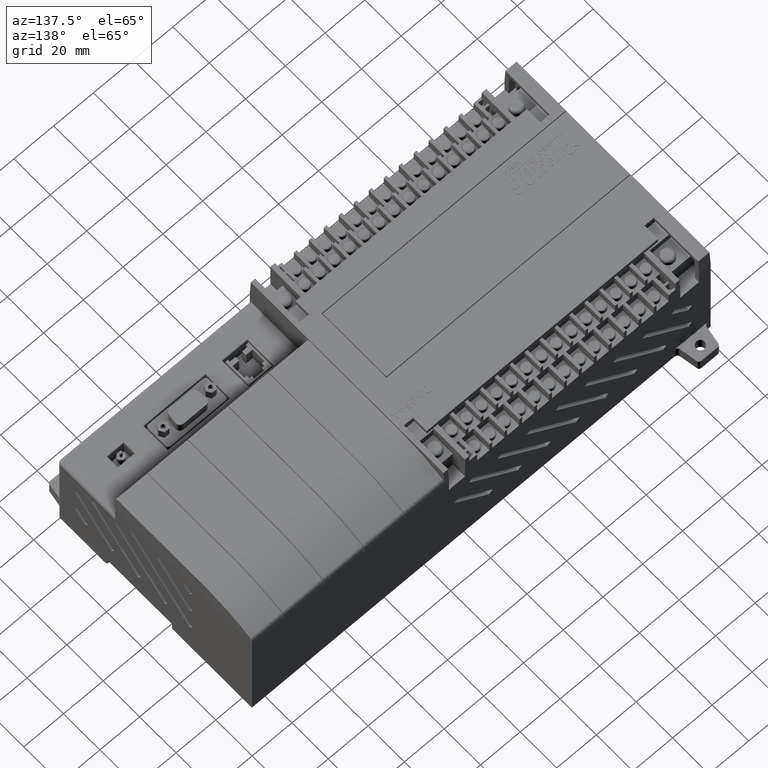
[diagram: clean part render]
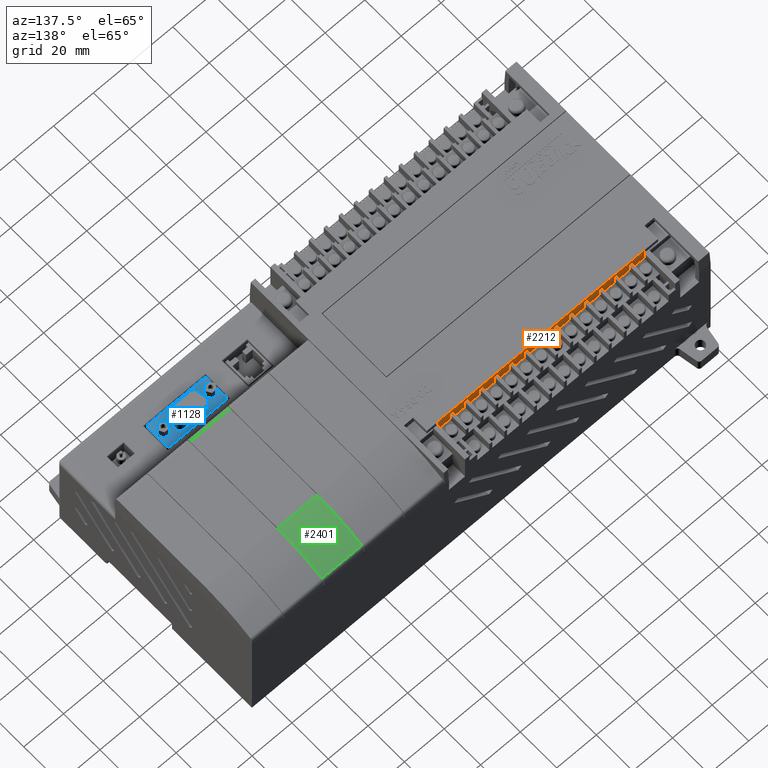
[diagram: same view with three faces highlighted in distinct colors, each labeled with its STEP entity id]
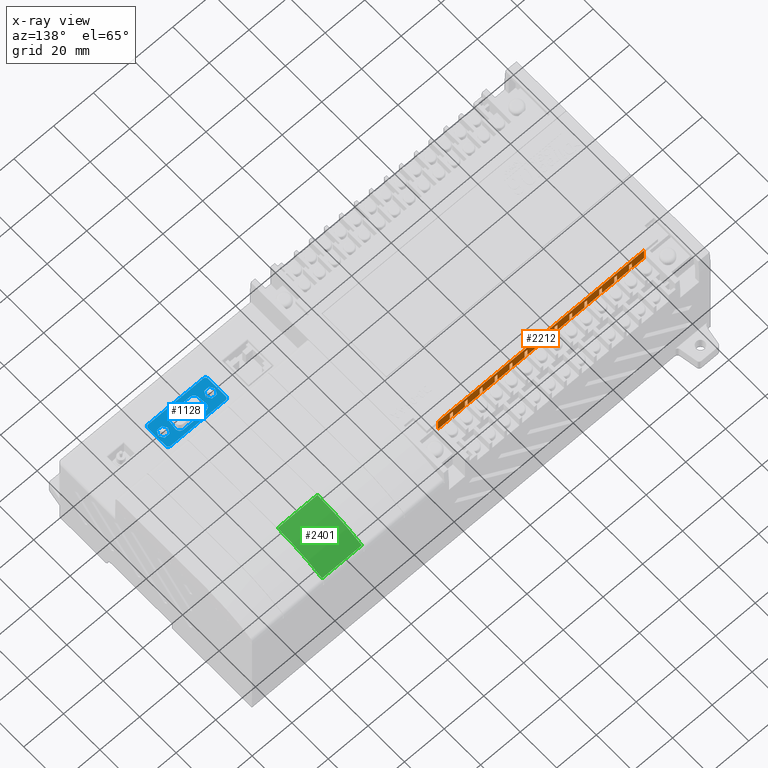
[diagram: x-ray of the same camera — body ghosted, the three highlighted faces saturated]
A machine part, auxiliary view with three faces highlighted in distinct colors.
The next image is the same camera in x-ray (body ghosted, the three faces saturated) — at least one of them is partly hidden behind the body in this view.
Their STEP definitions:

[orange] entity #2212 — the highlighted planar face has unit normal (0, -1, 0).
#411 = VERTEX_POINT ( 'NONE', #8822 ) ;
#415 = EDGE_CURVE ( 'NONE', #4213, #411, #8816, .T. ) ;
#1467 = EDGE_CURVE ( 'NONE', #2183, #62572, #11500, .T. ) ;
#1558 = VERTEX_POINT ( 'NONE', #11776 ) ;
#1749 = EDGE_CURVE ( 'NONE', #1558, #2715, #12292, .T. ) ;
#2152 = ORIENTED_EDGE ( 'NONE', *, *, #2154, .T. ) ;
#2154 = EDGE_CURVE ( 'NONE', #2289, #63170, #13418, .T. ) ;
#2157 = ORIENTED_EDGE ( 'NONE', *, *, #2841, .F. ) ;
#2158 = ORIENTED_EDGE ( 'NONE', *, *, #2161, .F. ) ;
#2161 = EDGE_CURVE ( 'NONE', #2241, #2948, #13513, .T. ) ;
#2162 = ORIENTED_EDGE ( 'NONE', *, *, #2165, .F. ) ;
#2165 = EDGE_CURVE ( 'NONE', #2168, #2631, #13506, .T. ) ;
#2168 = VERTEX_POINT ( 'NONE', #13489 ) ;
#2171 = ORIENTED_EDGE ( 'NONE', *, *, #2172, .T. ) ;
#2172 = EDGE_CURVE ( 'NONE', #2168, #2173, #13484, .T. ) ;
#2173 = VERTEX_POINT ( 'NONE', #13476 ) ;
#2175 = ORIENTED_EDGE ( 'NONE', *, *, #2176, .T. ) ;
#2176 = EDGE_CURVE ( 'NONE', #2173, #2207, #13474, .T. ) ;
#2178 = ORIENTED_EDGE ( 'NONE', *, *, #2218, .F. ) ;
#2180 = ORIENTED_EDGE ( 'NONE', *, *, #2182, .F. ) ;
#2182 = EDGE_CURVE ( 'NONE', #2183, #2194, #13586, .T. ) ;
#2183 = VERTEX_POINT ( 'NONE', #13581 ) ;
#2186 = ORIENTED_EDGE ( 'NONE', *, *, #1467, .T. ) ;
#2194 = VERTEX_POINT ( 'NONE', #13704 ) ;
#2207 = VERTEX_POINT ( 'NONE', #13689 ) ;
#2212 = ADVANCED_FACE ( 'NONE', ( #13678 ), #13739, .F. ) ;
#2214 = EDGE_LOOP ( 'NONE', ( #2162, #2171, #2175, #2178, #2180, #2186, #69274, #2274, #2276, #2285, #2152, #2157, #2158, #2247, #2253, #2264, #2266, #2269, #2351, #2357, #2220, #2225, #2230, #2235, #2236, #2328, #2333, #2339, #2340, #2344, #2303, #2307, #2308, #2312, #2319, #2321, #2376, #2386, #2397, #2405, #2413, #2295, #2487, #2360, #2362, #2366, #2370, #2373, #2459, #2466, #2476, #2479, #2480, #2482, #2484, #2561 ) ) ;
#2218 = EDGE_CURVE ( 'NONE', #2194, #2207, #13726, .T. ) ;
#2220 = ORIENTED_EDGE ( 'NONE', *, *, #2221, .F. ) ;
#2221 = EDGE_CURVE ( 'NONE', #2223, #62824, #13720, .T. ) ;
#2223 = VERTEX_POINT ( 'NONE', #13715 ) ;
#2225 = ORIENTED_EDGE ( 'NONE', *, *, #2226, .T. ) ;
#2226 = EDGE_CURVE ( 'NONE', #2223, #2228, #13713, .T. ) ;
#2228 = VERTEX_POINT ( 'NONE', #13709 ) ;
#2230 = ORIENTED_EDGE ( 'NONE', *, *, #2233, .T. ) ;
#2233 = EDGE_CURVE ( 'NONE', #2228, #62813, #13822, .T. ) ;
#2235 = ORIENTED_EDGE ( 'NONE', *, *, #62834, .F. ) ;
#2236 = ORIENTED_EDGE ( 'NONE', *, *, #2324, .F. ) ;
#2237 = VERTEX_POINT ( 'NONE', #13817 ) ;
#2241 = VERTEX_POINT ( 'NONE', #13806 ) ;
#2247 = ORIENTED_EDGE ( 'NONE', *, *, #2248, .T. ) ;
#2248 = EDGE_CURVE ( 'NONE', #2241, #2251, #13801, .T. ) ;
#2251 = VERTEX_POINT ( 'NONE', #13794 ) ;
#2253 = ORIENTED_EDGE ( 'NONE', *, *, #2258, .T. ) ;
#2258 = EDGE_CURVE ( 'NONE', #2251, #62960, #13792, .T. ) ;
#2264 = ORIENTED_EDGE ( 'NONE', *, *, #62914, .F. ) ;
#2266 = ORIENTED_EDGE ( 'NONE', *, *, #2267, .F. ) ;
#2267 = EDGE_CURVE ( 'NONE', #2268, #62968, #13780, .T. ) ;
#2268 = VERTEX_POINT ( 'NONE', #13773 ) ;
#2269 = ORIENTED_EDGE ( 'NONE', *, *, #2270, .T. ) ;
#2270 = EDGE_CURVE ( 'NONE', #2268, #2271, #13766, .T. ) ;
#2271 = VERTEX_POINT ( 'NONE', #13757 ) ;
#2272 = EDGE_CURVE ( 'NONE', #62572, #2715, #13879, .T. ) ;
#2274 = ORIENTED_EDGE ( 'NONE', *, *, #1749, .F. ) ;
#2276 = ORIENTED_EDGE ( 'NONE', *, *, #2278, .F. ) ;
#2278 = EDGE_CURVE ( 'NONE', #2280, #1558, #13935, .T. ) ;
#2280 = VERTEX_POINT ( 'NONE', #13929 ) ;
#2285 = ORIENTED_EDGE ( 'NONE', *, *, #2287, .T. ) ;
#2287 = EDGE_CURVE ( 'NONE', #2280, #2289, #13920, .T. ) ;
#2289 = VERTEX_POINT ( 'NONE', #13915 ) ;
#2292 = VERTEX_POINT ( 'NONE', #13914 ) ;
#2295 = ORIENTED_EDGE ( 'NONE', *, *, #2485, .T. ) ;
#2299 = VERTEX_POINT ( 'NONE', #13912 ) ;
#2303 = ORIENTED_EDGE ( 'NONE', *, *, #2306, .T. ) ;
#2306 = EDGE_CURVE ( 'NONE', #2299, #61712, #13908, .T. ) ;
#2307 = ORIENTED_EDGE ( 'NONE', *, *, #61725, .F. ) ;
#2308 = ORIENTED_EDGE ( 'NONE', *, *, #2309, .F. ) ;
#2309 = EDGE_CURVE ( 'NONE', #2310, #61723, #13901, .T. ) ;
#2310 = VERTEX_POINT ( 'NONE', #13895 ) ;
#2312 = ORIENTED_EDGE ( 'NONE', *, *, #2314, .T. ) ;
#2314 = EDGE_CURVE ( 'NONE', #2310, #2317, #13890, .T. ) ;
#2317 = VERTEX_POINT ( 'NONE', #13987 ) ;
#2319 = ORIENTED_EDGE ( 'NONE', *, *, #2320, .T. ) ;
#2320 = EDGE_CURVE ( 'NONE', #2317, #61688, #13974, .T. ) ;
#2321 = ORIENTED_EDGE ( 'NONE', *, *, #61705, .F. ) ;
#2322 = VERTEX_POINT ( 'NONE', #13968 ) ;
#2324 = EDGE_CURVE ( 'NONE', #2237, #62812, #13963, .T. ) ;
#2328 = ORIENTED_EDGE ( 'NONE', *, *, #2329, .T. ) ;
#2329 = EDGE_CURVE ( 'NONE', #2237, #2330, #13951, .T. ) ;
#2330 = VERTEX_POINT ( 'NONE', #13947 ) ;
#2333 = ORIENTED_EDGE ( 'NONE', *, *, #2334, .T. ) ;
#2334 = EDGE_CURVE ( 'NONE', #2330, #63041, #14060, .T. ) ;
#2339 = ORIENTED_EDGE ( 'NONE', *, *, #63102, .F. ) ;
#2340 = ORIENTED_EDGE ( 'NONE', *, *, #2342, .F. ) ;
#2342 = EDGE_CURVE ( 'NONE', #2343, #63098, #14044, .T. ) ;
#2343 = VERTEX_POINT ( 'NONE', #14040 ) ;
#2344 = ORIENTED_EDGE ( 'NONE', *, *, #2346, .T. ) ;
#2346 = EDGE_CURVE ( 'NONE', #2343, #2299, #14036, .T. ) ;
#2351 = ORIENTED_EDGE ( 'NONE', *, *, #2353, .T. ) ;
#2353 = EDGE_CURVE ( 'NONE', #2271, #62836, #14012, .T. ) ;
#2357 = ORIENTED_EDGE ( 'NONE', *, *, #62815, .F. ) ;
#2360 = ORIENTED_EDGE ( 'NONE', *, *, #61623, .F. ) ;
#2362 = ORIENTED_EDGE ( 'NONE', *, *, #2363, .F. ) ;
#2363 = EDGE_CURVE ( 'NONE', #2364, #61620, #14081, .T. ) ;
#2364 = VERTEX_POINT ( 'NONE', #14072 ) ;
#2366 = ORIENTED_EDGE ( 'NONE', *, *, #2367, .T. ) ;
#2367 = EDGE_CURVE ( 'NONE', #2364, #2368, #14187, .T. ) ;
#2368 = VERTEX_POINT ( 'NONE', #14178 ) ;
#2370 = ORIENTED_EDGE ( 'NONE', *, *, #2372, .T. ) ;
#2372 = EDGE_CURVE ( 'NONE', #2368, #60848, #14167, .T. ) ;
#2373 = ORIENTED_EDGE ( 'NONE', *, *, #60993, .F. ) ;
#2376 = ORIENTED_EDGE ( 'NONE', *, *, #2378, .F. ) ;
#2378 = EDGE_CURVE ( 'NONE', #2322, #61783, #14234, .T. ) ;
#2386 = ORIENTED_EDGE ( 'NONE', *, *, #2390, .T. ) ;
#2390 = EDGE_CURVE ( 'NONE', #2322, #2395, #14212, .T. ) ;
#2395 = VERTEX_POINT ( 'NONE', #14302 ) ;
#2397 = ORIENTED_EDGE ( 'NONE', *, *, #2402, .T. ) ;
#2402 = EDGE_CURVE ( 'NONE', #2395, #61612, #14369, .T. ) ;
#2405 = ORIENTED_EDGE ( 'NONE', *, *, #61689, .F. ) ;
#2413 = ORIENTED_EDGE ( 'NONE', *, *, #2419, .F. ) ;
#2419 = EDGE_CURVE ( 'NONE', #2292, #61610, #14342, .T. ) ;
#2459 = ORIENTED_EDGE ( 'NONE', *, *, #2461, .F. ) ;
#2461 = EDGE_CURVE ( 'NONE', #2463, #61023, #14463, .T. ) ;
#2463 = VERTEX_POINT ( 'NONE', #14456 ) ;
#2466 = ORIENTED_EDGE ( 'NONE', *, *, #2470, .T. ) ;
#2470 = EDGE_CURVE ( 'NONE', #2463, #2473, #14555, .T. ) ;
#2473 = VERTEX_POINT ( 'NONE', #14551 ) ;
#2476 = ORIENTED_EDGE ( 'NONE', *, *, #2477, .T. ) ;
#2477 = EDGE_CURVE ( 'NONE', #2473, #61546, #14536, .T. ) ;
#2479 = ORIENTED_EDGE ( 'NONE', *, *, #61553, .F. ) ;
#2480 = ORIENTED_EDGE ( 'NONE', *, *, #4307, .F. ) ;
#2482 = ORIENTED_EDGE ( 'NONE', *, *, #415, .T. ) ;
#2484 = ORIENTED_EDGE ( 'NONE', *, *, #2560, .T. ) ;
#2485 = EDGE_CURVE ( 'NONE', #2292, #2486, #14525, .T. ) ;
#2486 = VERTEX_POINT ( 'NONE', #14520 ) ;
#2487 = ORIENTED_EDGE ( 'NONE', *, *, #2490, .T. ) ;
#2490 = EDGE_CURVE ( 'NONE', #2486, #61589, #14517, .T. ) ;
#2560 = EDGE_CURVE ( 'NONE', #411, #3025, #14640, .T. ) ;
#2561 = ORIENTED_EDGE ( 'NONE', *, *, #3232, .F. ) ;
#2631 = VERTEX_POINT ( 'NONE', #14931 ) ;
#2715 = VERTEX_POINT ( 'NONE', #15100 ) ;
#2841 = EDGE_CURVE ( 'NONE', #2948, #63170, #15474, .T. ) ;
#2948 = VERTEX_POINT ( 'NONE', #15828 ) ;
#3025 = VERTEX_POINT ( 'NONE', #16028 ) ;
#3232 = EDGE_CURVE ( 'NONE', #2631, #3025, #16492, .T. ) ;
#4213 = VERTEX_POINT ( 'NONE', #19314 ) ;
#4307 = EDGE_CURVE ( 'NONE', #4213, #61539, #19496, .T. ) ;
#8811 = DIRECTION ( 'NONE',  ( 1.000000000000000000, 0.0000000000000000000, 3.491483361109382100E-015 ) ) ;
#8813 = VECTOR ( 'NONE', #8811, 39.37007874015748100 ) ;
#8815 = CARTESIAN_POINT ( 'NONE',  ( -3.262450984251971800, 3.521567633333243700, 5.822449999999983900 ) ) ;
#8816 = LINE ( 'NONE', #8815, #8813 ) ;
#8822 = CARTESIAN_POINT ( 'NONE',  ( 1.517649015748027800, 3.521567633333243300, 5.822450000000000800 ) ) ;
#11496 = DIRECTION ( 'NONE',  ( -1.000000000000000000, 0.0000000000000000000, -3.491483361109382100E-015 ) ) ;
#11498 = VECTOR ( 'NONE', #11496, 39.37007874015748100 ) ;
#11499 = CARTESIAN_POINT ( 'NONE',  ( 0.9256490157480276000, 3.521567633333242900, 5.734449999999998900 ) ) ;
#11500 = LINE ( 'NONE', #11499, #11498 ) ;
#11776 = CARTESIAN_POINT ( 'NONE',  ( 0.6846490157480292800, 3.521567633333242900, 5.562449999999997500 ) ) ;
#12289 = DIRECTION ( 'NONE',  ( 1.000000000000000000, -0.0000000000000000000, 3.491483361109382100E-015 ) ) ;
#12290 = VECTOR ( 'NONE', #12289, 39.37007874015748100 ) ;
#12291 = CARTESIAN_POINT ( 'NONE',  ( -2.571350984251971300, 3.521567633333243300, 5.562449999999986800 ) ) ;
#12292 = LINE ( 'NONE', #12291, #12290 ) ;
#12939 = DIRECTION ( 'NONE',  ( 3.491483361109382900E-015, -0.0000000000000000000, -1.000000000000000000 ) ) ;
#13415 = VECTOR ( 'NONE', #12939, 39.37007874015748100 ) ;
#13417 = CARTESIAN_POINT ( 'NONE',  ( 0.6296490157480267900, 3.521567633333242900, 6.081337950208706800 ) ) ;
#13418 = LINE ( 'NONE', #13417, #13415 ) ;
#13474 = LINE ( 'NONE', #13590, #13589 ) ;
#13476 = CARTESIAN_POINT ( 'NONE',  ( 1.221649015748027500, 3.521567633333242900, 5.734449999999999800 ) ) ;
#13479 = DIRECTION ( 'NONE',  ( -1.000000000000000000, 0.0000000000000000000, -3.491483361109382100E-015 ) ) ;
#13480 = VECTOR ( 'NONE', #13479, 39.37007874015748100 ) ;
#13482 = CARTESIAN_POINT ( 'NONE',  ( 1.221649015748027500, 3.521567633333242900, 5.734449999999999800 ) ) ;
#13484 = LINE ( 'NONE', #13482, #13480 ) ;
#13489 = CARTESIAN_POINT ( 'NONE',  ( 1.276649015748027900, 3.521567633333242900, 5.734449999999999800 ) ) ;
#13502 = DIRECTION ( 'NONE',  ( 3.491483361109382900E-015, -0.0000000000000000000, -1.000000000000000000 ) ) ;
#13503 = VECTOR ( 'NONE', #13502, 39.37007874015748100 ) ;
#13504 = CARTESIAN_POINT ( 'NONE',  ( 1.276649015748026800, 3.521567633333242900, 6.081337950208708600 ) ) ;
#13506 = LINE ( 'NONE', #13504, #13503 ) ;
#13510 = DIRECTION ( 'NONE',  ( 3.491483361109382900E-015, -0.0000000000000000000, -1.000000000000000000 ) ) ;
#13511 = VECTOR ( 'NONE', #13510, 39.37007874015748100 ) ;
#13512 = CARTESIAN_POINT ( 'NONE',  ( 0.3886490157480267900, 3.521567633333242900, 6.081337950208705900 ) ) ;
#13513 = LINE ( 'NONE', #13512, #13511 ) ;
#13581 = CARTESIAN_POINT ( 'NONE',  ( 0.9806490157480279900, 3.521567633333242900, 5.734449999999998900 ) ) ;
#13583 = DIRECTION ( 'NONE',  ( 3.491483361109382900E-015, -0.0000000000000000000, -1.000000000000000000 ) ) ;
#13584 = VECTOR ( 'NONE', #13583, 39.37007874015748100 ) ;
#13585 = CARTESIAN_POINT ( 'NONE',  ( 0.9806490157480268800, 3.521567633333242900, 6.081337950208707700 ) ) ;
#13586 = LINE ( 'NONE', #13585, #13584 ) ;
#13588 = DIRECTION ( 'NONE',  ( 3.491483361109382900E-015, -0.0000000000000000000, -1.000000000000000000 ) ) ;
#13589 = VECTOR ( 'NONE', #13588, 39.37007874015748100 ) ;
#13590 = CARTESIAN_POINT ( 'NONE',  ( 1.221649015748026400, 3.521567633333242900, 6.081337950208708600 ) ) ;
#13678 = FACE_OUTER_BOUND ( 'NONE', #2214, .T. ) ;
#13689 = CARTESIAN_POINT ( 'NONE',  ( 1.221649015748028000, 3.521567633333242900, 5.562449999999999200 ) ) ;
#13704 = CARTESIAN_POINT ( 'NONE',  ( 0.9806490157480285400, 3.521567633333242900, 5.562449999999998300 ) ) ;
#13709 = CARTESIAN_POINT ( 'NONE',  ( -0.2583509842519720600, 3.521567633333242900, 5.734449999999994500 ) ) ;
#13710 = DIRECTION ( 'NONE',  ( -1.000000000000000000, 0.0000000000000000000, -3.491483361109382100E-015 ) ) ;
#13711 = VECTOR ( 'NONE', #13710, 39.37007874015748100 ) ;
#13712 = CARTESIAN_POINT ( 'NONE',  ( -0.2583509842519720600, 3.521567633333242900, 5.734449999999994500 ) ) ;
#13713 = LINE ( 'NONE', #13712, #13711 ) ;
#13715 = CARTESIAN_POINT ( 'NONE',  ( -0.2033509842519717100, 3.521567633333242900, 5.734449999999994500 ) ) ;
#13717 = DIRECTION ( 'NONE',  ( 3.491483361109382900E-015, -0.0000000000000000000, -1.000000000000000000 ) ) ;
#13718 = VECTOR ( 'NONE', #13717, 39.37007874015748100 ) ;
#13719 = CARTESIAN_POINT ( 'NONE',  ( -0.2033509842519727900, 3.521567633333242900, 6.081337950208703300 ) ) ;
#13720 = LINE ( 'NONE', #13719, #13718 ) ;
#13722 = DIRECTION ( 'NONE',  ( 1.000000000000000000, -0.0000000000000000000, 3.491483361109382100E-015 ) ) ;
#13724 = VECTOR ( 'NONE', #13722, 39.37007874015748100 ) ;
#13725 = CARTESIAN_POINT ( 'NONE',  ( -2.571350984251971300, 3.521567633333243300, 5.562449999999986800 ) ) ;
#13726 = LINE ( 'NONE', #13725, #13724 ) ;
#13729 = DIRECTION ( 'NONE',  ( 1.000000000000000000, 0.0000000000000000000, 3.491483361109382100E-015 ) ) ;
#13730 = DIRECTION ( 'NONE',  ( 0.0000000000000000000, -1.000000000000000000, 0.0000000000000000000 ) ) ;
#13732 = CARTESIAN_POINT ( 'NONE',  ( -2.571350984251973500, 3.521567633333243300, 5.999335771198232700 ) ) ;
#13733 = AXIS2_PLACEMENT_3D ( 'NONE', #13732, #13730, #13729 ) ;
#13739 = PLANE ( 'NONE',  #13733 ) ;
#13757 = CARTESIAN_POINT ( 'NONE',  ( 0.03764901574802826500, 3.521567633333242900, 5.734449999999995400 ) ) ;
#13760 = DIRECTION ( 'NONE',  ( -1.000000000000000000, 0.0000000000000000000, -3.491483361109382100E-015 ) ) ;
#13761 = VECTOR ( 'NONE', #13760, 39.37007874015748100 ) ;
#13764 = CARTESIAN_POINT ( 'NONE',  ( 0.03764901574802826500, 3.521567633333242900, 5.734449999999995400 ) ) ;
#13766 = LINE ( 'NONE', #13764, #13761 ) ;
#13773 = CARTESIAN_POINT ( 'NONE',  ( 0.09264901574802754400, 3.521567633333242900, 5.734449999999995400 ) ) ;
#13776 = DIRECTION ( 'NONE',  ( 3.491483361109382900E-015, -0.0000000000000000000, -1.000000000000000000 ) ) ;
#13778 = VECTOR ( 'NONE', #13776, 39.37007874015748100 ) ;
#13779 = CARTESIAN_POINT ( 'NONE',  ( 0.09264901574802644800, 3.521567633333242900, 6.081337950208704200 ) ) ;
#13780 = LINE ( 'NONE', #13779, #13778 ) ;
#13786 = DIRECTION ( 'NONE',  ( 3.491483361109382900E-015, -0.0000000000000000000, -1.000000000000000000 ) ) ;
#13788 = VECTOR ( 'NONE', #13786, 39.37007874015748100 ) ;
#13791 = CARTESIAN_POINT ( 'NONE',  ( 0.3336490157480264100, 3.521567633333242900, 6.081337950208705900 ) ) ;
#13792 = LINE ( 'NONE', #13791, #13788 ) ;
#13794 = CARTESIAN_POINT ( 'NONE',  ( 0.3336490157480275200, 3.521567633333242900, 5.734449999999996300 ) ) ;
#13796 = DIRECTION ( 'NONE',  ( -1.000000000000000000, 0.0000000000000000000, -3.491483361109382100E-015 ) ) ;
#13797 = VECTOR ( 'NONE', #13796, 39.37007874015748100 ) ;
#13799 = CARTESIAN_POINT ( 'NONE',  ( 0.3336490157480275200, 3.521567633333242900, 5.734449999999996300 ) ) ;
#13801 = LINE ( 'NONE', #13799, #13797 ) ;
#13806 = CARTESIAN_POINT ( 'NONE',  ( 0.3886490157480279000, 3.521567633333242900, 5.734449999999996300 ) ) ;
#13817 = CARTESIAN_POINT ( 'NONE',  ( -0.4993509842519720500, 3.521567633333242900, 5.734449999999994500 ) ) ;
#13818 = DIRECTION ( 'NONE',  ( 3.491483361109382900E-015, -0.0000000000000000000, -1.000000000000000000 ) ) ;
#13820 = VECTOR ( 'NONE', #13818, 39.37007874015748100 ) ;
#13821 = CARTESIAN_POINT ( 'NONE',  ( -0.2583509842519731700, 3.521567633333242900, 6.081337950208703300 ) ) ;
#13822 = LINE ( 'NONE', #13821, #13820 ) ;
#13873 = DIRECTION ( 'NONE',  ( 3.491483361109382900E-015, -0.0000000000000000000, -1.000000000000000000 ) ) ;
#13875 = VECTOR ( 'NONE', #13873, 39.37007874015748100 ) ;
#13877 = CARTESIAN_POINT ( 'NONE',  ( 0.9256490157480266000, 3.521567633333242900, 6.081337950208707700 ) ) ;
#13879 = LINE ( 'NONE', #13877, #13875 ) ;
#13885 = DIRECTION ( 'NONE',  ( -1.000000000000000000, 0.0000000000000000000, -3.491483361109382100E-015 ) ) ;
#13887 = VECTOR ( 'NONE', #13885, 39.37007874015748100 ) ;
#13888 = CARTESIAN_POINT ( 'NONE',  ( -1.146350984251971900, 3.521567633333242900, 5.734449999999990900 ) ) ;
#13890 = LINE ( 'NONE', #13888, #13887 ) ;
#13895 = CARTESIAN_POINT ( 'NONE',  ( -1.091350984251971500, 3.521567633333242900, 5.734449999999991800 ) ) ;
#13896 = DIRECTION ( 'NONE',  ( 3.491483361109382900E-015, -0.0000000000000000000, -1.000000000000000000 ) ) ;
#13897 = VECTOR ( 'NONE', #13896, 39.37007874015748100 ) ;
#13899 = CARTESIAN_POINT ( 'NONE',  ( -1.091350984251972600, 3.521567633333242900, 6.081337950208699700 ) ) ;
#13901 = LINE ( 'NONE', #13899, #13897 ) ;
#13905 = DIRECTION ( 'NONE',  ( 3.491483361109382900E-015, -0.0000000000000000000, -1.000000000000000000 ) ) ;
#13906 = VECTOR ( 'NONE', #13905, 39.37007874015748100 ) ;
#13907 = CARTESIAN_POINT ( 'NONE',  ( -0.8503509842519727500, 3.521567633333242900, 6.081337950208701500 ) ) ;
#13908 = LINE ( 'NONE', #13907, #13906 ) ;
#13912 = CARTESIAN_POINT ( 'NONE',  ( -0.8503509842519716400, 3.521567633333242900, 5.734449999999991800 ) ) ;
#13914 = CARTESIAN_POINT ( 'NONE',  ( -1.683350984251972300, 3.521567633333242900, 5.734449999999990100 ) ) ;
#13915 = CARTESIAN_POINT ( 'NONE',  ( 0.6296490157480279000, 3.521567633333242900, 5.734449999999998000 ) ) ;
#13916 = DIRECTION ( 'NONE',  ( -1.000000000000000000, 0.0000000000000000000, -3.491483361109382100E-015 ) ) ;
#13917 = VECTOR ( 'NONE', #13916, 39.37007874015748100 ) ;
#13919 = CARTESIAN_POINT ( 'NONE',  ( 0.6296490157480279000, 3.521567633333242900, 5.734449999999998000 ) ) ;
#13920 = LINE ( 'NONE', #13919, #13917 ) ;
#13929 = CARTESIAN_POINT ( 'NONE',  ( 0.6846490157480281700, 3.521567633333242900, 5.734449999999998000 ) ) ;
#13930 = DIRECTION ( 'NONE',  ( 3.491483361109382900E-015, -0.0000000000000000000, -1.000000000000000000 ) ) ;
#13932 = VECTOR ( 'NONE', #13930, 39.37007874015748100 ) ;
#13933 = CARTESIAN_POINT ( 'NONE',  ( 0.6846490157480271700, 3.521567633333242900, 6.081337950208706800 ) ) ;
#13935 = LINE ( 'NONE', #13933, #13932 ) ;
#13947 = CARTESIAN_POINT ( 'NONE',  ( -0.5543509842519723800, 3.521567633333242900, 5.734449999999993600 ) ) ;
#13948 = DIRECTION ( 'NONE',  ( -1.000000000000000000, 0.0000000000000000000, -3.491483361109382100E-015 ) ) ;
#13949 = VECTOR ( 'NONE', #13948, 39.37007874015748100 ) ;
#13950 = CARTESIAN_POINT ( 'NONE',  ( -0.5543509842519723800, 3.521567633333242900, 5.734449999999993600 ) ) ;
#13951 = LINE ( 'NONE', #13950, #13949 ) ;
#13959 = DIRECTION ( 'NONE',  ( 3.491483361109382900E-015, -0.0000000000000000000, -1.000000000000000000 ) ) ;
#13960 = VECTOR ( 'NONE', #13959, 39.37007874015748100 ) ;
#13962 = CARTESIAN_POINT ( 'NONE',  ( -0.4993509842519731600, 3.521567633333242900, 6.081337950208702400 ) ) ;
#13963 = LINE ( 'NONE', #13962, #13960 ) ;
#13968 = CARTESIAN_POINT ( 'NONE',  ( -1.387350984251972000, 3.521567633333242900, 5.734449999999990100 ) ) ;
#13970 = DIRECTION ( 'NONE',  ( 3.491483361109382900E-015, -0.0000000000000000000, -1.000000000000000000 ) ) ;
#13972 = VECTOR ( 'NONE', #13970, 39.37007874015748100 ) ;
#13973 = CARTESIAN_POINT ( 'NONE',  ( -1.146350984251973000, 3.521567633333242900, 6.081337950208699700 ) ) ;
#13974 = LINE ( 'NONE', #13973, #13972 ) ;
#13987 = CARTESIAN_POINT ( 'NONE',  ( -1.146350984251971900, 3.521567633333242900, 5.734449999999990900 ) ) ;
#14006 = DIRECTION ( 'NONE',  ( 3.491483361109382900E-015, -0.0000000000000000000, -1.000000000000000000 ) ) ;
#14008 = VECTOR ( 'NONE', #14006, 39.37007874015748100 ) ;
#14010 = CARTESIAN_POINT ( 'NONE',  ( 0.03764901574802716900, 3.521567633333242900, 6.081337950208704200 ) ) ;
#14012 = LINE ( 'NONE', #14010, #14008 ) ;
#14031 = DIRECTION ( 'NONE',  ( -1.000000000000000000, 0.0000000000000000000, -3.491483361109382100E-015 ) ) ;
#14033 = VECTOR ( 'NONE', #14031, 39.37007874015748100 ) ;
#14035 = CARTESIAN_POINT ( 'NONE',  ( -0.8503509842519716400, 3.521567633333242900, 5.734449999999991800 ) ) ;
#14036 = LINE ( 'NONE', #14035, #14033 ) ;
#14040 = CARTESIAN_POINT ( 'NONE',  ( -0.7953509842519723700, 3.521567633333242900, 5.734449999999991800 ) ) ;
#14041 = DIRECTION ( 'NONE',  ( 3.491483361109382900E-015, -0.0000000000000000000, -1.000000000000000000 ) ) ;
#14042 = VECTOR ( 'NONE', #14041, 39.37007874015748100 ) ;
#14043 = CARTESIAN_POINT ( 'NONE',  ( -0.7953509842519734800, 3.521567633333242900, 6.081337950208702400 ) ) ;
#14044 = LINE ( 'NONE', #14043, #14042 ) ;
#14054 = DIRECTION ( 'NONE',  ( 3.491483361109382900E-015, -0.0000000000000000000, -1.000000000000000000 ) ) ;
#14056 = VECTOR ( 'NONE', #14054, 39.37007874015748100 ) ;
#14058 = CARTESIAN_POINT ( 'NONE',  ( -0.5543509842519734900, 3.521567633333242900, 6.081337950208702400 ) ) ;
#14060 = LINE ( 'NONE', #14058, #14056 ) ;
#14072 = CARTESIAN_POINT ( 'NONE',  ( -1.979350984251971600, 3.521567633333242900, 5.734449999999987400 ) ) ;
#14075 = DIRECTION ( 'NONE',  ( 3.491483361109382900E-015, -0.0000000000000000000, -1.000000000000000000 ) ) ;
#14077 = VECTOR ( 'NONE', #14075, 39.37007874015748100 ) ;
#14079 = CARTESIAN_POINT ( 'NONE',  ( -1.979350984251972800, 3.521567633333242900, 6.081337950208697900 ) ) ;
#14081 = LINE ( 'NONE', #14079, #14077 ) ;
#14161 = DIRECTION ( 'NONE',  ( 3.491483361109382900E-015, -0.0000000000000000000, -1.000000000000000000 ) ) ;
#14163 = VECTOR ( 'NONE', #14161, 39.37007874015748100 ) ;
#14165 = CARTESIAN_POINT ( 'NONE',  ( -2.034350984251973100, 3.521567633333242900, 6.081337950208697900 ) ) ;
#14167 = LINE ( 'NONE', #14165, #14163 ) ;
#14178 = CARTESIAN_POINT ( 'NONE',  ( -2.034350984251971800, 3.521567633333242900, 5.734449999999987400 ) ) ;
#14181 = DIRECTION ( 'NONE',  ( -1.000000000000000000, 0.0000000000000000000, -3.491483361109382100E-015 ) ) ;
#14183 = VECTOR ( 'NONE', #14181, 39.37007874015748100 ) ;
#14185 = CARTESIAN_POINT ( 'NONE',  ( -2.034350984251971800, 3.521567633333242900, 5.734449999999987400 ) ) ;
#14187 = LINE ( 'NONE', #14185, #14183 ) ;
#14207 = DIRECTION ( 'NONE',  ( -1.000000000000000000, 0.0000000000000000000, -3.491483361109382100E-015 ) ) ;
#14208 = VECTOR ( 'NONE', #14207, 39.37007874015748100 ) ;
#14210 = CARTESIAN_POINT ( 'NONE',  ( -1.442350984251972400, 3.521567633333242900, 5.734449999999990100 ) ) ;
#14212 = LINE ( 'NONE', #14210, #14208 ) ;
#14230 = DIRECTION ( 'NONE',  ( 3.491483361109382900E-015, -0.0000000000000000000, -1.000000000000000000 ) ) ;
#14232 = VECTOR ( 'NONE', #14230, 39.37007874015748100 ) ;
#14233 = CARTESIAN_POINT ( 'NONE',  ( -1.387350984251973100, 3.521567633333242900, 6.081337950208699700 ) ) ;
#14234 = LINE ( 'NONE', #14233, #14232 ) ;
#14302 = CARTESIAN_POINT ( 'NONE',  ( -1.442350984251972400, 3.521567633333242900, 5.734449999999990100 ) ) ;
#14339 = DIRECTION ( 'NONE',  ( 3.491483361109382900E-015, -0.0000000000000000000, -1.000000000000000000 ) ) ;
#14340 = VECTOR ( 'NONE', #14339, 39.37007874015748100 ) ;
#14341 = CARTESIAN_POINT ( 'NONE',  ( -1.683350984251973400, 3.521567633333242900, 6.081337950208697900 ) ) ;
#14342 = LINE ( 'NONE', #14341, #14340 ) ;
#14365 = DIRECTION ( 'NONE',  ( 3.491483361109382900E-015, -0.0000000000000000000, -1.000000000000000000 ) ) ;
#14367 = VECTOR ( 'NONE', #14365, 39.37007874015748100 ) ;
#14368 = CARTESIAN_POINT ( 'NONE',  ( -1.442350984251973500, 3.521567633333242900, 6.081337950208699700 ) ) ;
#14369 = LINE ( 'NONE', #14368, #14367 ) ;
#14456 = CARTESIAN_POINT ( 'NONE',  ( -2.275350984251971900, 3.521567633333242900, 5.734449999999987400 ) ) ;
#14458 = DIRECTION ( 'NONE',  ( 3.491483361109382900E-015, -0.0000000000000000000, -1.000000000000000000 ) ) ;
#14460 = VECTOR ( 'NONE', #14458, 39.37007874015748100 ) ;
#14462 = CARTESIAN_POINT ( 'NONE',  ( -2.275350984251972800, 3.521567633333242900, 6.081337950208695300 ) ) ;
#14463 = LINE ( 'NONE', #14462, #14460 ) ;
#14513 = DIRECTION ( 'NONE',  ( 3.491483361109382900E-015, -0.0000000000000000000, -1.000000000000000000 ) ) ;
#14514 = VECTOR ( 'NONE', #14513, 39.37007874015748100 ) ;
#14516 = CARTESIAN_POINT ( 'NONE',  ( -1.738350984251973800, 3.521567633333242900, 6.081337950208697900 ) ) ;
#14517 = LINE ( 'NONE', #14516, #14514 ) ;
#14520 = CARTESIAN_POINT ( 'NONE',  ( -1.738350984251972700, 3.521567633333242900, 5.734449999999990100 ) ) ;
#14521 = DIRECTION ( 'NONE',  ( -1.000000000000000000, 0.0000000000000000000, -3.491483361109382100E-015 ) ) ;
#14523 = VECTOR ( 'NONE', #14521, 39.37007874015748100 ) ;
#14524 = CARTESIAN_POINT ( 'NONE',  ( -1.738350984251972700, 3.521567633333242900, 5.734449999999990100 ) ) ;
#14525 = LINE ( 'NONE', #14524, #14523 ) ;
#14532 = DIRECTION ( 'NONE',  ( 3.491483361109382900E-015, -0.0000000000000000000, -1.000000000000000000 ) ) ;
#14533 = VECTOR ( 'NONE', #14532, 39.37007874015748100 ) ;
#14535 = CARTESIAN_POINT ( 'NONE',  ( -2.330350984251973400, 3.521567633333242900, 6.081337950208695300 ) ) ;
#14536 = LINE ( 'NONE', #14535, #14533 ) ;
#14551 = CARTESIAN_POINT ( 'NONE',  ( -2.330350984251972100, 3.521567633333243300, 5.734449999999987400 ) ) ;
#14552 = DIRECTION ( 'NONE',  ( -1.000000000000000000, 0.0000000000000000000, -3.491483361109382100E-015 ) ) ;
#14553 = VECTOR ( 'NONE', #14552, 39.37007874015748100 ) ;
#14554 = CARTESIAN_POINT ( 'NONE',  ( -2.330350984251972100, 3.521567633333242900, 5.734449999999987400 ) ) ;
#14555 = LINE ( 'NONE', #14554, #14553 ) ;
#14636 = DIRECTION ( 'NONE',  ( 3.491483361109382100E-015, 0.0000000000000000000, -1.000000000000000000 ) ) ;
#14637 = VECTOR ( 'NONE', #14636, 39.37007874015748100 ) ;
#14639 = CARTESIAN_POINT ( 'NONE',  ( 1.517649015748027100, 3.521567633333243300, 5.999335771198248700 ) ) ;
#14640 = LINE ( 'NONE', #14639, #14637 ) ;
#14931 = CARTESIAN_POINT ( 'NONE',  ( 1.276649015748028400, 3.521567633333242900, 5.562449999999999200 ) ) ;
#15100 = CARTESIAN_POINT ( 'NONE',  ( 0.9256490157480281600, 3.521567633333242900, 5.562449999999998300 ) ) ;
#15469 = DIRECTION ( 'NONE',  ( 1.000000000000000000, -0.0000000000000000000, 3.491483361109382100E-015 ) ) ;
#15470 = VECTOR ( 'NONE', #15469, 39.37007874015748100 ) ;
#15471 = CARTESIAN_POINT ( 'NONE',  ( -2.571350984251971300, 3.521567633333243300, 5.562449999999986800 ) ) ;
#15474 = LINE ( 'NONE', #15471, #15470 ) ;
#15828 = CARTESIAN_POINT ( 'NONE',  ( 0.3886490157480289600, 3.521567633333242900, 5.562449999999996600 ) ) ;
#16028 = CARTESIAN_POINT ( 'NONE',  ( 1.517649015748028200, 3.521567633333243300, 5.562450000000001000 ) ) ;
#16488 = DIRECTION ( 'NONE',  ( 1.000000000000000000, -0.0000000000000000000, 3.491483361109382100E-015 ) ) ;
#16489 = VECTOR ( 'NONE', #16488, 39.37007874015748100 ) ;
#16490 = CARTESIAN_POINT ( 'NONE',  ( -2.571350984251971300, 3.521567633333243300, 5.562449999999986800 ) ) ;
#16492 = LINE ( 'NONE', #16490, #16489 ) ;
#19314 = CARTESIAN_POINT ( 'NONE',  ( -2.571350984251972200, 3.521567633333243300, 5.822449999999986600 ) ) ;
#19490 = DIRECTION ( 'NONE',  ( 3.491483361109382100E-015, 0.0000000000000000000, -1.000000000000000000 ) ) ;
#19491 = VECTOR ( 'NONE', #19490, 39.37007874015748100 ) ;
#19494 = CARTESIAN_POINT ( 'NONE',  ( -2.571350984251973500, 3.521567633333243300, 5.999335771198232700 ) ) ;
#19496 = LINE ( 'NONE', #19494, #19491 ) ;
#45696 = CARTESIAN_POINT ( 'NONE',  ( -2.034350984251970900, 3.521567633333242900, 5.562449999999987700 ) ) ;
#46323 = DIRECTION ( 'NONE',  ( 1.000000000000000000, -0.0000000000000000000, 3.491483361109382100E-015 ) ) ;
#46324 = VECTOR ( 'NONE', #46323, 39.37007874015748100 ) ;
#46325 = CARTESIAN_POINT ( 'NONE',  ( -2.571350984251971300, 3.521567633333243300, 5.562449999999986800 ) ) ;
#46326 = LINE ( 'NONE', #46325, #46324 ) ;
#46404 = CARTESIAN_POINT ( 'NONE',  ( -2.275350984251971000, 3.521567633333243300, 5.562449999999987700 ) ) ;
#48403 = CARTESIAN_POINT ( 'NONE',  ( -2.330350984251971200, 3.521567633333243300, 5.562449999999987700 ) ) ;
#48422 = CARTESIAN_POINT ( 'NONE',  ( -2.571350984251971300, 3.521567633333243300, 5.562449999999986800 ) ) ;
#48484 = DIRECTION ( 'NONE',  ( 1.000000000000000000, -0.0000000000000000000, 3.491483361109382100E-015 ) ) ;
#48485 = VECTOR ( 'NONE', #48484, 39.37007874015748100 ) ;
#48486 = CARTESIAN_POINT ( 'NONE',  ( -2.571350984251971300, 3.521567633333243300, 5.562449999999986800 ) ) ;
#48487 = LINE ( 'NONE', #48486, #48485 ) ;
#48533 = CARTESIAN_POINT ( 'NONE',  ( -1.738350984251971500, 3.521567633333242900, 5.562449999999988600 ) ) ;
#48569 = CARTESIAN_POINT ( 'NONE',  ( -1.683350984251971200, 3.521567633333242900, 5.562449999999989500 ) ) ;
#48586 = CARTESIAN_POINT ( 'NONE',  ( -1.442350984251971300, 3.521567633333242900, 5.562449999999989500 ) ) ;
#48624 = DIRECTION ( 'NONE',  ( 1.000000000000000000, -0.0000000000000000000, 3.491483361109382100E-015 ) ) ;
#48625 = VECTOR ( 'NONE', #48624, 39.37007874015748100 ) ;
#48626 = CARTESIAN_POINT ( 'NONE',  ( -2.571350984251971300, 3.521567633333243300, 5.562449999999986800 ) ) ;
#48627 = LINE ( 'NONE', #48626, #48625 ) ;
#48629 = CARTESIAN_POINT ( 'NONE',  ( -1.979350984251970500, 3.521567633333242900, 5.562449999999987700 ) ) ;
#48710 = DIRECTION ( 'NONE',  ( 1.000000000000000000, -0.0000000000000000000, 3.491483361109382100E-015 ) ) ;
#48711 = VECTOR ( 'NONE', #48710, 39.37007874015748100 ) ;
#48712 = CARTESIAN_POINT ( 'NONE',  ( -2.571350984251971300, 3.521567633333243300, 5.562449999999986800 ) ) ;
#48713 = LINE ( 'NONE', #48712, #48711 ) ;
#48715 = CARTESIAN_POINT ( 'NONE',  ( -1.146350984251971000, 3.521567633333242900, 5.562449999999991200 ) ) ;
#48773 = DIRECTION ( 'NONE',  ( 1.000000000000000000, -0.0000000000000000000, 3.491483361109382100E-015 ) ) ;
#48774 = VECTOR ( 'NONE', #48773, 39.37007874015748100 ) ;
#48775 = CARTESIAN_POINT ( 'NONE',  ( -2.571350984251971300, 3.521567633333243300, 5.562449999999986800 ) ) ;
#48776 = LINE ( 'NONE', #48775, #48774 ) ;
#48800 = CARTESIAN_POINT ( 'NONE',  ( -0.8503509842519705300, 3.521567633333242900, 5.562449999999992100 ) ) ;
#48836 = DIRECTION ( 'NONE',  ( 1.000000000000000000, -0.0000000000000000000, 3.491483361109382100E-015 ) ) ;
#48837 = VECTOR ( 'NONE', #48836, 39.37007874015748100 ) ;
#48838 = CARTESIAN_POINT ( 'NONE',  ( -2.571350984251971300, 3.521567633333243300, 5.562449999999986800 ) ) ;
#48839 = LINE ( 'NONE', #48838, #48837 ) ;
#48840 = CARTESIAN_POINT ( 'NONE',  ( -1.091350984251970600, 3.521567633333242900, 5.562449999999992100 ) ) ;
#49037 = CARTESIAN_POINT ( 'NONE',  ( -1.387350984251970900, 3.521567633333242900, 5.562449999999989500 ) ) ;
#51462 = CARTESIAN_POINT ( 'NONE',  ( 0.9256490157480276000, 3.521567633333242900, 5.734449999999998900 ) ) ;
#52395 = LINE ( 'NONE', #52449, #52448 ) ;
#52396 = CARTESIAN_POINT ( 'NONE',  ( -0.2583509842519710100, 3.521567633333242900, 5.562449999999993900 ) ) ;
#52397 = CARTESIAN_POINT ( 'NONE',  ( -0.4993509842519709400, 3.521567633333242900, 5.562449999999993000 ) ) ;
#52430 = CARTESIAN_POINT ( 'NONE',  ( -0.2033509842519706200, 3.521567633333242900, 5.562449999999993900 ) ) ;
#52447 = DIRECTION ( 'NONE',  ( 1.000000000000000000, -0.0000000000000000000, 3.491483361109382100E-015 ) ) ;
#52448 = VECTOR ( 'NONE', #52447, 39.37007874015748100 ) ;
#52449 = CARTESIAN_POINT ( 'NONE',  ( -2.571350984251971300, 3.521567633333243300, 5.562449999999986800 ) ) ;
#52466 = CARTESIAN_POINT ( 'NONE',  ( 0.03764901574802935500, 3.521567633333242900, 5.562449999999994800 ) ) ;
#52471 = DIRECTION ( 'NONE',  ( 1.000000000000000000, -0.0000000000000000000, 3.491483361109382100E-015 ) ) ;
#52472 = VECTOR ( 'NONE', #52471, 39.37007874015748100 ) ;
#52473 = CARTESIAN_POINT ( 'NONE',  ( -2.571350984251971300, 3.521567633333243300, 5.562449999999986800 ) ) ;
#52474 = LINE ( 'NONE', #52473, #52472 ) ;
#52710 = DIRECTION ( 'NONE',  ( 1.000000000000000000, -0.0000000000000000000, 3.491483361109382100E-015 ) ) ;
#52711 = VECTOR ( 'NONE', #52710, 39.37007874015748100 ) ;
#52712 = CARTESIAN_POINT ( 'NONE',  ( -2.571350984251971300, 3.521567633333243300, 5.562449999999986800 ) ) ;
#52713 = LINE ( 'NONE', #52712, #52711 ) ;
#52835 = CARTESIAN_POINT ( 'NONE',  ( 0.09264901574802864000, 3.521567633333242900, 5.562449999999994800 ) ) ;
#52847 = CARTESIAN_POINT ( 'NONE',  ( 0.3336490157480285800, 3.521567633333242900, 5.562449999999996600 ) ) ;
#53089 = CARTESIAN_POINT ( 'NONE',  ( -0.5543509842519712700, 3.521567633333242900, 5.562449999999993000 ) ) ;
#53345 = DIRECTION ( 'NONE',  ( 1.000000000000000000, -0.0000000000000000000, 3.491483361109382100E-015 ) ) ;
#53346 = VECTOR ( 'NONE', #53345, 39.37007874015748100 ) ;
#53347 = CARTESIAN_POINT ( 'NONE',  ( -2.571350984251971300, 3.521567633333243300, 5.562449999999986800 ) ) ;
#53348 = LINE ( 'NONE', #53347, #53346 ) ;
#53354 = CARTESIAN_POINT ( 'NONE',  ( -0.7953509842519712600, 3.521567633333242900, 5.562449999999992100 ) ) ;
#53667 = CARTESIAN_POINT ( 'NONE',  ( 0.6296490157480289000, 3.521567633333242900, 5.562449999999997500 ) ) ;
#60848 = VERTEX_POINT ( 'NONE', #45696 ) ;
#60993 = EDGE_CURVE ( 'NONE', #61023, #60848, #46326, .T. ) ;
#61023 = VERTEX_POINT ( 'NONE', #46404 ) ;
#61539 = VERTEX_POINT ( 'NONE', #48422 ) ;
#61546 = VERTEX_POINT ( 'NONE', #48403 ) ;
#61553 = EDGE_CURVE ( 'NONE', #61539, #61546, #48487, .T. ) ;
#61589 = VERTEX_POINT ( 'NONE', #48533 ) ;
#61610 = VERTEX_POINT ( 'NONE', #48569 ) ;
#61612 = VERTEX_POINT ( 'NONE', #48586 ) ;
#61620 = VERTEX_POINT ( 'NONE', #48629 ) ;
#61623 = EDGE_CURVE ( 'NONE', #61620, #61589, #48627, .T. ) ;
#61688 = VERTEX_POINT ( 'NONE', #48715 ) ;
#61689 = EDGE_CURVE ( 'NONE', #61610, #61612, #48713, .T. ) ;
#61705 = EDGE_CURVE ( 'NONE', #61783, #61688, #48776, .T. ) ;
#61712 = VERTEX_POINT ( 'NONE', #48800 ) ;
#61723 = VERTEX_POINT ( 'NONE', #48840 ) ;
#61725 = EDGE_CURVE ( 'NONE', #61723, #61712, #48839, .T. ) ;
#61783 = VERTEX_POINT ( 'NONE', #49037 ) ;
#62572 = VERTEX_POINT ( 'NONE', #51462 ) ;
#62812 = VERTEX_POINT ( 'NONE', #52397 ) ;
#62813 = VERTEX_POINT ( 'NONE', #52396 ) ;
#62815 = EDGE_CURVE ( 'NONE', #62824, #62836, #52395, .T. ) ;
#62824 = VERTEX_POINT ( 'NONE', #52430 ) ;
#62834 = EDGE_CURVE ( 'NONE', #62812, #62813, #52474, .T. ) ;
#62836 = VERTEX_POINT ( 'NONE', #52466 ) ;
#62914 = EDGE_CURVE ( 'NONE', #62968, #62960, #52713, .T. ) ;
#62960 = VERTEX_POINT ( 'NONE', #52847 ) ;
#62968 = VERTEX_POINT ( 'NONE', #52835 ) ;
#63041 = VERTEX_POINT ( 'NONE', #53089 ) ;
#63098 = VERTEX_POINT ( 'NONE', #53354 ) ;
#63102 = EDGE_CURVE ( 'NONE', #63098, #63041, #53348, .T. ) ;
#63170 = VERTEX_POINT ( 'NONE', #53667 ) ;
#69274 = ORIENTED_EDGE ( 'NONE', *, *, #2272, .T. ) ;

[blue] entity #1128 — the highlighted planar face has unit normal (0, 0, -1).
#1106 = ORIENTED_EDGE ( 'NONE', *, *, #1108, .F. ) ;
#1108 = EDGE_CURVE ( 'NONE', #1141, #1260, #10642, .T. ) ;
#1110 = EDGE_LOOP ( 'NONE', ( #1112, #1222, #1230, #1235, #1242, #1247, #1196, #1202 ) ) ;
#1112 = ORIENTED_EDGE ( 'NONE', *, *, #1114, .T. ) ;
#1114 = EDGE_CURVE ( 'NONE', #1115, #1117, #10626, .T. ) ;
#1115 = VERTEX_POINT ( 'NONE', #10616 ) ;
#1117 = VERTEX_POINT ( 'NONE', #10614 ) ;
#1128 = ADVANCED_FACE ( 'NONE', ( #10592, #10591, #10590, #10589 ), #10666, .F. ) ;
#1132 = EDGE_LOOP ( 'NONE', ( #1133, #1143, #1148, #1254, #1258, #1106 ) ) ;
#1133 = ORIENTED_EDGE ( 'NONE', *, *, #1135, .F. ) ;
#1135 = EDGE_CURVE ( 'NONE', #1137, #1141, #10656, .T. ) ;
#1137 = VERTEX_POINT ( 'NONE', #10645 ) ;
#1141 = VERTEX_POINT ( 'NONE', #10646 ) ;
#1143 = ORIENTED_EDGE ( 'NONE', *, *, #1145, .F. ) ;
#1145 = EDGE_CURVE ( 'NONE', #1146, #1137, #10756, .T. ) ;
#1146 = VERTEX_POINT ( 'NONE', #10750 ) ;
#1148 = ORIENTED_EDGE ( 'NONE', *, *, #1249, .F. ) ;
#1182 = ORIENTED_EDGE ( 'NONE', *, *, #1184, .F. ) ;
#1184 = EDGE_CURVE ( 'NONE', #1187, #1189, #10812, .T. ) ;
#1187 = VERTEX_POINT ( 'NONE', #10803 ) ;
#1189 = VERTEX_POINT ( 'NONE', #10801 ) ;
#1191 = EDGE_CURVE ( 'NONE', #1245, #1194, #10799, .T. ) ;
#1194 = VERTEX_POINT ( 'NONE', #10791 ) ;
#1196 = ORIENTED_EDGE ( 'NONE', *, *, #1198, .T. ) ;
#1198 = EDGE_CURVE ( 'NONE', #1194, #1200, #10788, .T. ) ;
#1200 = VERTEX_POINT ( 'NONE', #10779 ) ;
#1202 = ORIENTED_EDGE ( 'NONE', *, *, #1203, .T. ) ;
#1203 = EDGE_CURVE ( 'NONE', #1200, #1115, #10768, .T. ) ;
#1206 = EDGE_LOOP ( 'NONE', ( #1207, #1214, #1299, #1303, #1307, #1312 ) ) ;
#1207 = ORIENTED_EDGE ( 'NONE', *, *, #1209, .F. ) ;
#1209 = EDGE_CURVE ( 'NONE', #1211, #1212, #10880, .T. ) ;
#1211 = VERTEX_POINT ( 'NONE', #10876 ) ;
#1212 = VERTEX_POINT ( 'NONE', #10875 ) ;
#1214 = ORIENTED_EDGE ( 'NONE', *, *, #1216, .F. ) ;
#1216 = EDGE_CURVE ( 'NONE', #1217, #1211, #10872, .T. ) ;
#1217 = VERTEX_POINT ( 'NONE', #10864 ) ;
#1222 = ORIENTED_EDGE ( 'NONE', *, *, #1226, .T. ) ;
#1226 = EDGE_CURVE ( 'NONE', #1117, #1229, #10862, .T. ) ;
#1229 = VERTEX_POINT ( 'NONE', #10854 ) ;
#1230 = ORIENTED_EDGE ( 'NONE', *, *, #1231, .T. ) ;
#1231 = EDGE_CURVE ( 'NONE', #1229, #1233, #10850, .T. ) ;
#1233 = VERTEX_POINT ( 'NONE', #10843 ) ;
#1235 = ORIENTED_EDGE ( 'NONE', *, *, #1236, .T. ) ;
#1236 = EDGE_CURVE ( 'NONE', #1233, #1239, #10838, .T. ) ;
#1239 = VERTEX_POINT ( 'NONE', #10833 ) ;
#1242 = ORIENTED_EDGE ( 'NONE', *, *, #1244, .T. ) ;
#1244 = EDGE_CURVE ( 'NONE', #1239, #1245, #10950, .T. ) ;
#1245 = VERTEX_POINT ( 'NONE', #10943 ) ;
#1247 = ORIENTED_EDGE ( 'NONE', *, *, #1191, .T. ) ;
#1249 = EDGE_CURVE ( 'NONE', #1250, #1146, #10937, .T. ) ;
#1250 = VERTEX_POINT ( 'NONE', #10932 ) ;
#1254 = ORIENTED_EDGE ( 'NONE', *, *, #1256, .F. ) ;
#1256 = EDGE_CURVE ( 'NONE', #1257, #1250, #10921, .T. ) ;
#1257 = VERTEX_POINT ( 'NONE', #10913 ) ;
#1258 = ORIENTED_EDGE ( 'NONE', *, *, #1259, .F. ) ;
#1259 = EDGE_CURVE ( 'NONE', #1260, #1257, #10910, .T. ) ;
#1260 = VERTEX_POINT ( 'NONE', #10903 ) ;
#1261 = ORIENTED_EDGE ( 'NONE', *, *, #1263, .F. ) ;
#1263 = EDGE_CURVE ( 'NONE', #1264, #1374, #10981, .T. ) ;
#1264 = VERTEX_POINT ( 'NONE', #10961 ) ;
#1266 = ORIENTED_EDGE ( 'NONE', *, *, #1267, .F. ) ;
#1267 = EDGE_CURVE ( 'NONE', #1189, #1264, #10952, .T. ) ;
#1280 = ORIENTED_EDGE ( 'NONE', *, *, #1281, .F. ) ;
#1281 = EDGE_CURVE ( 'NONE', #1282, #1187, #11096, .T. ) ;
#1282 = VERTEX_POINT ( 'NONE', #11088 ) ;
#1283 = ORIENTED_EDGE ( 'NONE', *, *, #1284, .F. ) ;
#1284 = EDGE_CURVE ( 'NONE', #1287, #1282, #11085, .T. ) ;
#1287 = VERTEX_POINT ( 'NONE', #11077 ) ;
#1288 = ORIENTED_EDGE ( 'NONE', *, *, #1289, .F. ) ;
#1289 = EDGE_CURVE ( 'NONE', #1291, #1287, #11073, .T. ) ;
#1291 = VERTEX_POINT ( 'NONE', #11066 ) ;
#1292 = ORIENTED_EDGE ( 'NONE', *, *, #1293, .F. ) ;
#1293 = EDGE_CURVE ( 'NONE', #1295, #1291, #11184, .T. ) ;
#1295 = VERTEX_POINT ( 'NONE', #11179 ) ;
#1296 = ORIENTED_EDGE ( 'NONE', *, *, #1297, .F. ) ;
#1297 = EDGE_CURVE ( 'NONE', #1374, #1295, #11175, .T. ) ;
#1299 = ORIENTED_EDGE ( 'NONE', *, *, #1300, .F. ) ;
#1300 = EDGE_CURVE ( 'NONE', #1302, #1217, #11168, .T. ) ;
#1302 = VERTEX_POINT ( 'NONE', #11160 ) ;
#1303 = ORIENTED_EDGE ( 'NONE', *, *, #1305, .F. ) ;
#1305 = EDGE_CURVE ( 'NONE', #1306, #1302, #11156, .T. ) ;
#1306 = VERTEX_POINT ( 'NONE', #11151 ) ;
#1307 = ORIENTED_EDGE ( 'NONE', *, *, #1309, .F. ) ;
#1309 = EDGE_CURVE ( 'NONE', #1310, #1306, #11147, .T. ) ;
#1310 = VERTEX_POINT ( 'NONE', #11139 ) ;
#1312 = ORIENTED_EDGE ( 'NONE', *, *, #1313, .F. ) ;
#1313 = EDGE_CURVE ( 'NONE', #1212, #1310, #11136, .T. ) ;
#1316 = EDGE_LOOP ( 'NONE', ( #1182, #1280, #1283, #1288, #1292, #1296, #1261, #1266 ) ) ;
#1374 = VERTEX_POINT ( 'NONE', #11344 ) ;
#10589 = FACE_BOUND ( 'NONE', #1316, .T. ) ;
#10590 = FACE_BOUND ( 'NONE', #1206, .T. ) ;
#10591 = FACE_OUTER_BOUND ( 'NONE', #1110, .T. ) ;
#10592 = FACE_BOUND ( 'NONE', #1132, .T. ) ;
#10614 = CARTESIAN_POINT ( 'NONE',  ( 3.356649015748029500, 0.4550676333332440100, 5.134550000000006200 ) ) ;
#10616 = CARTESIAN_POINT ( 'NONE',  ( 3.306649015748029300, 0.5050676333332443400, 5.134550000000006200 ) ) ;
#10618 = DIRECTION ( 'NONE',  ( 0.0000000000000000000, -1.000000000000000000, 0.0000000000000000000 ) ) ;
#10619 = DIRECTION ( 'NONE',  ( -3.491483361109382100E-015, -5.253553833969737600E-016, 1.000000000000000000 ) ) ;
#10622 = CARTESIAN_POINT ( 'NONE',  ( 3.356649015748029100, 0.5050676333332440000, 5.134550000000006200 ) ) ;
#10624 = AXIS2_PLACEMENT_3D ( 'NONE', #10622, #10619, #10618 ) ;
#10626 = CIRCLE ( 'NONE', #10624, 0.04999999999999987800 ) ;
#10628 = DIRECTION ( 'NONE',  ( 0.5000000000000002200, -0.8660254037844384900, 1.745741680554691600E-015 ) ) ;
#10630 = VECTOR ( 'NONE', #10628, 39.37007874015749600 ) ;
#10633 = CARTESIAN_POINT ( 'NONE',  ( 4.274016186191797600, 0.6950676333332437300, 5.134550000000009700 ) ) ;
#10642 = LINE ( 'NONE', #10633, #10630 ) ;
#10645 = CARTESIAN_POINT ( 'NONE',  ( 4.321832600969913500, 0.7778880931647279600, 5.134550000000010600 ) ) ;
#10646 = CARTESIAN_POINT ( 'NONE',  ( 4.274016186191797600, 0.6950676333332439500, 5.134550000000010600 ) ) ;
#10649 = DIRECTION ( 'NONE',  ( -0.4999999999999968400, -0.8660254037844403700, -1.745741680554680200E-015 ) ) ;
#10651 = VECTOR ( 'NONE', #10649, 39.37007874015748100 ) ;
#10654 = CARTESIAN_POINT ( 'NONE',  ( 4.321832600969913500, 0.7778880931647279600, 5.134550000000010600 ) ) ;
#10656 = LINE ( 'NONE', #10654, #10651 ) ;
#10657 = DIRECTION ( 'NONE',  ( 1.834269579799774000E-030, -1.000000000000000000, -5.253553833969737600E-016 ) ) ;
#10658 = DIRECTION ( 'NONE',  ( 3.491483361109382100E-015, 5.253553833969737600E-016, -1.000000000000000000 ) ) ;
#10660 = CARTESIAN_POINT ( 'NONE',  ( 3.356649015748029100, 0.5050676333332440000, 5.134550000000006200 ) ) ;
#10661 = AXIS2_PLACEMENT_3D ( 'NONE', #10660, #10658, #10657 ) ;
#10666 = PLANE ( 'NONE',  #10661 ) ;
#10750 = CARTESIAN_POINT ( 'NONE',  ( 4.417465430526145400, 0.7778880931647279600, 5.134550000000010600 ) ) ;
#10752 = DIRECTION ( 'NONE',  ( -1.000000000000000000, 0.0000000000000000000, -3.491483361109382100E-015 ) ) ;
#10753 = VECTOR ( 'NONE', #10752, 39.37007874015748100 ) ;
#10755 = CARTESIAN_POINT ( 'NONE',  ( 4.417465430526145400, 0.7778880931647279600, 5.134550000000010600 ) ) ;
#10756 = LINE ( 'NONE', #10755, #10753 ) ;
#10763 = DIRECTION ( 'NONE',  ( 2.510053109199696100E-030, -1.000000000000000000, -7.189073667537551000E-016 ) ) ;
#10765 = VECTOR ( 'NONE', #10763, 39.37007874015748100 ) ;
#10767 = CARTESIAN_POINT ( 'NONE',  ( 3.306649015748029300, 0.8850676333332435600, 5.134550000000006200 ) ) ;
#10768 = LINE ( 'NONE', #10767, #10765 ) ;
#10779 = CARTESIAN_POINT ( 'NONE',  ( 3.306649015748029300, 0.8850676333332435600, 5.134550000000006200 ) ) ;
#10781 = DIRECTION ( 'NONE',  ( 0.0000000000000000000, -1.000000000000000000, 0.0000000000000000000 ) ) ;
#10782 = DIRECTION ( 'NONE',  ( -3.491483361109382100E-015, -5.253553833969737600E-016, 1.000000000000000000 ) ) ;
#10784 = CARTESIAN_POINT ( 'NONE',  ( 3.356649015748029100, 0.8850676333332437900, 5.134550000000006200 ) ) ;
#10786 = AXIS2_PLACEMENT_3D ( 'NONE', #10784, #10782, #10781 ) ;
#10788 = CIRCLE ( 'NONE', #10786, 0.04999999999999987800 ) ;
#10791 = CARTESIAN_POINT ( 'NONE',  ( 3.356649015748029500, 0.9350676333332438300, 5.134550000000006200 ) ) ;
#10793 = DIRECTION ( 'NONE',  ( -1.000000000000000000, 0.0000000000000000000, -3.491483361109382100E-015 ) ) ;
#10795 = VECTOR ( 'NONE', #10793, 39.37007874015748100 ) ;
#10798 = CARTESIAN_POINT ( 'NONE',  ( 4.444649015748029600, 0.9350676333332438300, 5.134550000000010600 ) ) ;
#10799 = LINE ( 'NONE', #10798, #10795 ) ;
#10801 = CARTESIAN_POINT ( 'NONE',  ( 3.696517671189788200, 0.5440676333332438200, 5.134550000000007900 ) ) ;
#10803 = CARTESIAN_POINT ( 'NONE',  ( 3.617101658437791700, 0.6144189588867395900, 5.134550000000007100 ) ) ;
#10806 = DIRECTION ( 'NONE',  ( 0.0000000000000000000, -1.000000000000000000, 0.0000000000000000000 ) ) ;
#10808 = DIRECTION ( 'NONE',  ( -3.491483361109382100E-015, -5.253553833969737600E-016, 1.000000000000000000 ) ) ;
#10811 = AXIS2_PLACEMENT_3D ( 'NONE', #10821, #10808, #10806 ) ;
#10812 = CIRCLE ( 'NONE', #10811, 0.07999999999999996000 ) ;
#10821 = CARTESIAN_POINT ( 'NONE',  ( 3.696517671189788200, 0.6240676333332438900, 5.134550000000007900 ) ) ;
#10833 = CARTESIAN_POINT ( 'NONE',  ( 4.494649015748029400, 0.8850676333332433400, 5.134550000000010600 ) ) ;
#10834 = DIRECTION ( 'NONE',  ( -2.510053109199696800E-030, 1.000000000000000000, 7.189073667537552900E-016 ) ) ;
#10835 = VECTOR ( 'NONE', #10834, 39.37007874015748100 ) ;
#10837 = CARTESIAN_POINT ( 'NONE',  ( 4.494649015748029400, 0.5050676333332443400, 5.134550000000010600 ) ) ;
#10838 = LINE ( 'NONE', #10837, #10835 ) ;
#10843 = CARTESIAN_POINT ( 'NONE',  ( 4.494649015748029400, 0.5050676333332443400, 5.134550000000010600 ) ) ;
#10844 = DIRECTION ( 'NONE',  ( 0.0000000000000000000, 1.000000000000000000, 0.0000000000000000000 ) ) ;
#10845 = DIRECTION ( 'NONE',  ( -3.491483361109382100E-015, -5.253553833969737600E-016, 1.000000000000000000 ) ) ;
#10846 = CARTESIAN_POINT ( 'NONE',  ( 4.444649015748029600, 0.5050676333332440000, 5.134550000000010600 ) ) ;
#10848 = AXIS2_PLACEMENT_3D ( 'NONE', #10846, #10845, #10844 ) ;
#10850 = CIRCLE ( 'NONE', #10848, 0.05000000000000001000 ) ;
#10854 = CARTESIAN_POINT ( 'NONE',  ( 4.444649015748029600, 0.4550676333332440100, 5.134550000000010600 ) ) ;
#10857 = DIRECTION ( 'NONE',  ( 1.000000000000000000, 0.0000000000000000000, 3.491483361109382100E-015 ) ) ;
#10859 = VECTOR ( 'NONE', #10857, 39.37007874015748100 ) ;
#10861 = CARTESIAN_POINT ( 'NONE',  ( 3.356649015748029500, 0.4550676333332440100, 5.134550000000006200 ) ) ;
#10862 = LINE ( 'NONE', #10861, #10859 ) ;
#10864 = CARTESIAN_POINT ( 'NONE',  ( 3.479147963130045700, 0.7780705735614776900, 5.134550000000007100 ) ) ;
#10866 = DIRECTION ( 'NONE',  ( -0.9999926694757937900, -0.003828967834260734200, -3.491457766706088200E-015 ) ) ;
#10868 = VECTOR ( 'NONE', #10866, 39.37007874015748100 ) ;
#10870 = CARTESIAN_POINT ( 'NONE',  ( 3.479147963130045700, 0.7780705735614776900, 5.134550000000007100 ) ) ;
#10872 = LINE ( 'NONE', #10870, #10868 ) ;
#10875 = CARTESIAN_POINT ( 'NONE',  ( 3.336016887230569300, 0.6947014583049743200, 5.134550000000006200 ) ) ;
#10876 = CARTESIAN_POINT ( 'NONE',  ( 3.383515834612586200, 0.7777043985332075000, 5.134550000000006200 ) ) ;
#10877 = DIRECTION ( 'NONE',  ( -0.4966803513231569700, -0.8679335392813815100, -1.734151182434764500E-015 ) ) ;
#10878 = VECTOR ( 'NONE', #10877, 39.37007874015748100 ) ;
#10879 = CARTESIAN_POINT ( 'NONE',  ( 3.383515834612586200, 0.7777043985332075000, 5.134550000000006200 ) ) ;
#10880 = LINE ( 'NONE', #10879, #10878 ) ;
#10903 = CARTESIAN_POINT ( 'NONE',  ( 4.321832600969913500, 0.6122471735017598300, 5.134550000000010600 ) ) ;
#10905 = DIRECTION ( 'NONE',  ( 1.000000000000000000, 0.0000000000000000000, 3.491483361109382100E-015 ) ) ;
#10906 = VECTOR ( 'NONE', #10905, 39.37007874015748100 ) ;
#10908 = CARTESIAN_POINT ( 'NONE',  ( 4.321832600969913500, 0.6122471735017598300, 5.134550000000010600 ) ) ;
#10910 = LINE ( 'NONE', #10908, #10906 ) ;
#10913 = CARTESIAN_POINT ( 'NONE',  ( 4.417465430526145400, 0.6122471735017598300, 5.134550000000010600 ) ) ;
#10915 = DIRECTION ( 'NONE',  ( 0.5000000000000002200, 0.8660254037844384900, 1.745741680554691600E-015 ) ) ;
#10917 = VECTOR ( 'NONE', #10915, 39.37007874015749600 ) ;
#10919 = CARTESIAN_POINT ( 'NONE',  ( 4.417465430526145400, 0.6122471735017598300, 5.134550000000010600 ) ) ;
#10921 = LINE ( 'NONE', #10919, #10917 ) ;
#10932 = CARTESIAN_POINT ( 'NONE',  ( 4.465281845304262200, 0.6950676333332436200, 5.134550000000010600 ) ) ;
#10934 = DIRECTION ( 'NONE',  ( -0.5000000000000011100, 0.8660254037844379300, -1.745741680554695000E-015 ) ) ;
#10935 = VECTOR ( 'NONE', #10934, 39.37007874015748100 ) ;
#10936 = CARTESIAN_POINT ( 'NONE',  ( 4.465281845304261300, 0.6950676333332437300, 5.134550000000010600 ) ) ;
#10937 = LINE ( 'NONE', #10936, #10935 ) ;
#10943 = CARTESIAN_POINT ( 'NONE',  ( 4.444649015748029600, 0.9350676333332438300, 5.134550000000010600 ) ) ;
#10945 = DIRECTION ( 'NONE',  ( 0.0000000000000000000, 1.000000000000000000, 0.0000000000000000000 ) ) ;
#10946 = DIRECTION ( 'NONE',  ( -3.491483361109382100E-015, -5.253553833969737600E-016, 1.000000000000000000 ) ) ;
#10947 = CARTESIAN_POINT ( 'NONE',  ( 4.444649015748029600, 0.8850676333332437900, 5.134550000000010600 ) ) ;
#10948 = AXIS2_PLACEMENT_3D ( 'NONE', #10947, #10946, #10945 ) ;
#10950 = CIRCLE ( 'NONE', #10948, 0.05000000000000001000 ) ;
#10952 = LINE ( 'NONE', #11064, #11062 ) ;
#10961 = CARTESIAN_POINT ( 'NONE',  ( 4.104780360306270000, 0.5440676333332439300, 5.134550000000009700 ) ) ;
#10963 = DIRECTION ( 'NONE',  ( 0.0000000000000000000, 1.000000000000000000, 0.0000000000000000000 ) ) ;
#10965 = DIRECTION ( 'NONE',  ( -3.491483361109382100E-015, -5.253553833969737600E-016, 1.000000000000000000 ) ) ;
#10968 = CARTESIAN_POINT ( 'NONE',  ( 4.104780360306270000, 0.6240676333332438900, 5.134550000000009700 ) ) ;
#10970 = AXIS2_PLACEMENT_3D ( 'NONE', #10968, #10965, #10963 ) ;
#10981 = CIRCLE ( 'NONE', #10970, 0.07999999999999996000 ) ;
#11060 = DIRECTION ( 'NONE',  ( 1.000000000000000000, 1.672849409516356000E-016, 3.491483361109382100E-015 ) ) ;
#11062 = VECTOR ( 'NONE', #11060, 39.37007874015748100 ) ;
#11064 = CARTESIAN_POINT ( 'NONE',  ( 4.104780360306270000, 0.5440676333332439300, 5.134550000000009700 ) ) ;
#11066 = CARTESIAN_POINT ( 'NONE',  ( 4.124341107969821800, 0.8650676333332439900, 5.134550000000009700 ) ) ;
#11070 = DIRECTION ( 'NONE',  ( -1.000000000000000000, -3.053134295596397500E-016, -3.491483361109382100E-015 ) ) ;
#11071 = VECTOR ( 'NONE', #11070, 39.37007874015748100 ) ;
#11072 = CARTESIAN_POINT ( 'NONE',  ( 3.676956923526237400, 0.8650676333332438800, 5.134550000000007900 ) ) ;
#11073 = LINE ( 'NONE', #11072, #11071 ) ;
#11077 = CARTESIAN_POINT ( 'NONE',  ( 3.676956923526237400, 0.8650676333332439900, 5.134550000000007900 ) ) ;
#11078 = DIRECTION ( 'NONE',  ( 0.0000000000000000000, -1.000000000000000000, 0.0000000000000000000 ) ) ;
#11080 = DIRECTION ( 'NONE',  ( -3.491483361109382100E-015, -5.253553833969737600E-016, 1.000000000000000000 ) ) ;
#11082 = CARTESIAN_POINT ( 'NONE',  ( 3.676956923526237400, 0.7850676333332439200, 5.134550000000007900 ) ) ;
#11084 = AXIS2_PLACEMENT_3D ( 'NONE', #11082, #11080, #11078 ) ;
#11085 = CIRCLE ( 'NONE', #11084, 0.08000000000000009900 ) ;
#11088 = CARTESIAN_POINT ( 'NONE',  ( 3.597540910774240000, 0.7754189588867396200, 5.134550000000007100 ) ) ;
#11091 = DIRECTION ( 'NONE',  ( 0.1206084305813048400, -0.9927001593999642500, 4.211023285841418500E-016 ) ) ;
#11093 = VECTOR ( 'NONE', #11091, 39.37007874015748100 ) ;
#11094 = CARTESIAN_POINT ( 'NONE',  ( 3.617101658437791700, 0.6144189588867395900, 5.134550000000007100 ) ) ;
#11096 = LINE ( 'NONE', #11094, #11093 ) ;
#11133 = DIRECTION ( 'NONE',  ( 0.5033123181526427700, -0.8641045714471211600, 1.757306584271343600E-015 ) ) ;
#11134 = VECTOR ( 'NONE', #11133, 39.37007874015748100 ) ;
#11135 = CARTESIAN_POINT ( 'NONE',  ( 3.336016887230569300, 0.6947014583049742100, 5.134550000000006200 ) ) ;
#11136 = LINE ( 'NONE', #11135, #11134 ) ;
#11139 = CARTESIAN_POINT ( 'NONE',  ( 3.384150068366013300, 0.6120646931050103300, 5.134550000000006200 ) ) ;
#11142 = DIRECTION ( 'NONE',  ( 0.9999926694757937900, 0.003828967834260734200, 3.491457766706088200E-015 ) ) ;
#11143 = VECTOR ( 'NONE', #11142, 39.37007874015748100 ) ;
#11145 = CARTESIAN_POINT ( 'NONE',  ( 3.384150068366013300, 0.6120646931050103300, 5.134550000000006200 ) ) ;
#11147 = LINE ( 'NONE', #11145, #11143 ) ;
#11151 = CARTESIAN_POINT ( 'NONE',  ( 3.479782196883472800, 0.6124308681332804000, 5.134550000000007100 ) ) ;
#11152 = DIRECTION ( 'NONE',  ( 0.4966803513231576300, 0.8679335392813810600, 1.734151182434766900E-015 ) ) ;
#11153 = VECTOR ( 'NONE', #11152, 39.37007874015748100 ) ;
#11154 = CARTESIAN_POINT ( 'NONE',  ( 3.479782196883472800, 0.6124308681332805100, 5.134550000000007100 ) ) ;
#11156 = LINE ( 'NONE', #11154, #11153 ) ;
#11160 = CARTESIAN_POINT ( 'NONE',  ( 3.527281144265490100, 0.6954338083615134700, 5.134550000000007100 ) ) ;
#11161 = DIRECTION ( 'NONE',  ( -0.5033123181526419900, 0.8641045714471214900, -1.757306584271341400E-015 ) ) ;
#11163 = VECTOR ( 'NONE', #11161, 39.37007874015748900 ) ;
#11165 = CARTESIAN_POINT ( 'NONE',  ( 3.527281144265489200, 0.6954338083615136900, 5.134550000000007100 ) ) ;
#11168 = LINE ( 'NONE', #11165, #11163 ) ;
#11170 = DIRECTION ( 'NONE',  ( 0.1206084305813048000, 0.9927001593999642500, 4.211023285841417000E-016 ) ) ;
#11171 = VECTOR ( 'NONE', #11170, 39.37007874015748900 ) ;
#11173 = CARTESIAN_POINT ( 'NONE',  ( 4.203757120721818700, 0.7754189588867396200, 5.134550000000009700 ) ) ;
#11175 = LINE ( 'NONE', #11173, #11171 ) ;
#11179 = CARTESIAN_POINT ( 'NONE',  ( 4.203757120721818700, 0.7754189588867396200, 5.134550000000009700 ) ) ;
#11180 = DIRECTION ( 'NONE',  ( 0.0000000000000000000, 1.000000000000000000, 0.0000000000000000000 ) ) ;
#11181 = DIRECTION ( 'NONE',  ( -3.491483361109382100E-015, -5.253553833969737600E-016, 1.000000000000000000 ) ) ;
#11182 = CARTESIAN_POINT ( 'NONE',  ( 4.124341107969821800, 0.7850676333332439200, 5.134550000000009700 ) ) ;
#11183 = AXIS2_PLACEMENT_3D ( 'NONE', #11182, #11181, #11180 ) ;
#11184 = CIRCLE ( 'NONE', #11183, 0.07999999999999996000 ) ;
#11344 = CARTESIAN_POINT ( 'NONE',  ( 4.184196373058267900, 0.6144189588867393600, 5.134550000000009700 ) ) ;

[green] entity #2401 — the highlighted cylindrical surface (partial cylindrical patch) has radius 65 mm, axis along (1, -0, 0).
#2249 = EDGE_LOOP ( 'NONE', ( #2803, #2705, #2814, #3041 ) ) ;
#2265 = VERTEX_POINT ( 'NONE', #13782 ) ;
#2401 = ADVANCED_FACE ( 'NONE', ( #14300 ), #14255, .T. ) ;
#2414 = EDGE_CURVE ( 'NONE', #2265, #2483, #14359, .T. ) ;
#2483 = VERTEX_POINT ( 'NONE', #14527 ) ;
#2705 = ORIENTED_EDGE ( 'NONE', *, *, #2961, .T. ) ;
#2803 = ORIENTED_EDGE ( 'NONE', *, *, #2811, .F. ) ;
#2811 = EDGE_CURVE ( 'NONE', #3023, #2483, #15431, .T. ) ;
#2814 = ORIENTED_EDGE ( 'NONE', *, *, #3040, .F. ) ;
#2961 = EDGE_CURVE ( 'NONE', #3023, #2963, #15922, .T. ) ;
#2963 = VERTEX_POINT ( 'NONE', #15918 ) ;
#3023 = VERTEX_POINT ( 'NONE', #16031 ) ;
#3040 = EDGE_CURVE ( 'NONE', #2265, #2963, #16058, .T. ) ;
#3041 = ORIENTED_EDGE ( 'NONE', *, *, #2414, .T. ) ;
#13782 = CARTESIAN_POINT ( 'NONE',  ( 3.611649015748029000, 3.202845798833342500, 5.822450000000009700 ) ) ;
#14255 = CYLINDRICAL_SURFACE ( 'NONE', #14376, 2.559055118110237000 ) ;
#14300 = FACE_OUTER_BOUND ( 'NONE', #2249, .T. ) ;
#14354 = DIRECTION ( 'NONE',  ( 1.000000000000000000, -0.0000000000000000000, 3.491483361109382900E-015 ) ) ;
#14355 = VECTOR ( 'NONE', #14354, 39.37007874015748100 ) ;
#14357 = CARTESIAN_POINT ( 'NONE',  ( 0.9865308364895211100, 3.202845798833343000, 5.822449999999998100 ) ) ;
#14359 = LINE ( 'NONE', #14357, #14355 ) ;
#14372 = DIRECTION ( 'NONE',  ( 3.469446951953613400E-015, 0.0000000000000000000, -1.000000000000000000 ) ) ;
#14374 = DIRECTION ( 'NONE',  ( 1.000000000000000000, -0.0000000000000000000, 3.491483361109382500E-015 ) ) ;
#14375 = CARTESIAN_POINT ( 'NONE',  ( 0.9865308364895297700, 3.123871135442914500, 3.264613785527194600 ) ) ;
#14376 = AXIS2_PLACEMENT_3D ( 'NONE', #14375, #14374, #14372 ) ;
#14527 = CARTESIAN_POINT ( 'NONE',  ( 4.401649015748027700, 3.202845798833343000, 5.822450000000011400 ) ) ;
#15424 = DIRECTION ( 'NONE',  ( 3.416070845000480600E-015, 0.0000000000000000000, -1.000000000000000000 ) ) ;
#15426 = DIRECTION ( 'NONE',  ( 1.000000000000000000, 0.0000000000000000000, 3.491483361109382100E-015 ) ) ;
#15427 = CARTESIAN_POINT ( 'NONE',  ( 4.401649015748036600, 3.123871135442914500, 3.264613785527206200 ) ) ;
#15429 = AXIS2_PLACEMENT_3D ( 'NONE', #15427, #15426, #15424 ) ;
#15431 = CIRCLE ( 'NONE', #15429, 2.559055118110237000 ) ;
#15918 = CARTESIAN_POINT ( 'NONE',  ( 3.611649015748028500, 4.165323162130881100, 5.602163950472060200 ) ) ;
#15919 = DIRECTION ( 'NONE',  ( -1.000000000000000000, 0.0000000000000000000, -3.491483361109382900E-015 ) ) ;
#15920 = VECTOR ( 'NONE', #15919, 39.37007874015748100 ) ;
#15921 = CARTESIAN_POINT ( 'NONE',  ( 0.9865308364895215600, 4.165323162130881100, 5.602163950472051300 ) ) ;
#15922 = LINE ( 'NONE', #15921, #15920 ) ;
#16031 = CARTESIAN_POINT ( 'NONE',  ( 4.401649015748028600, 4.165323162130881100, 5.602163950472063700 ) ) ;
#16053 = DIRECTION ( 'NONE',  ( -3.416070845000481400E-015, 0.0000000000000000000, 1.000000000000000000 ) ) ;
#16055 = DIRECTION ( 'NONE',  ( -1.000000000000000000, 0.0000000000000000000, -3.491483361109382100E-015 ) ) ;
#16056 = CARTESIAN_POINT ( 'NONE',  ( 3.611649015748037900, 3.123871135442914500, 3.264613785527203500 ) ) ;
#16057 = AXIS2_PLACEMENT_3D ( 'NONE', #16056, #16055, #16053 ) ;
#16058 = CIRCLE ( 'NONE', #16057, 2.559055118110236600 ) ;